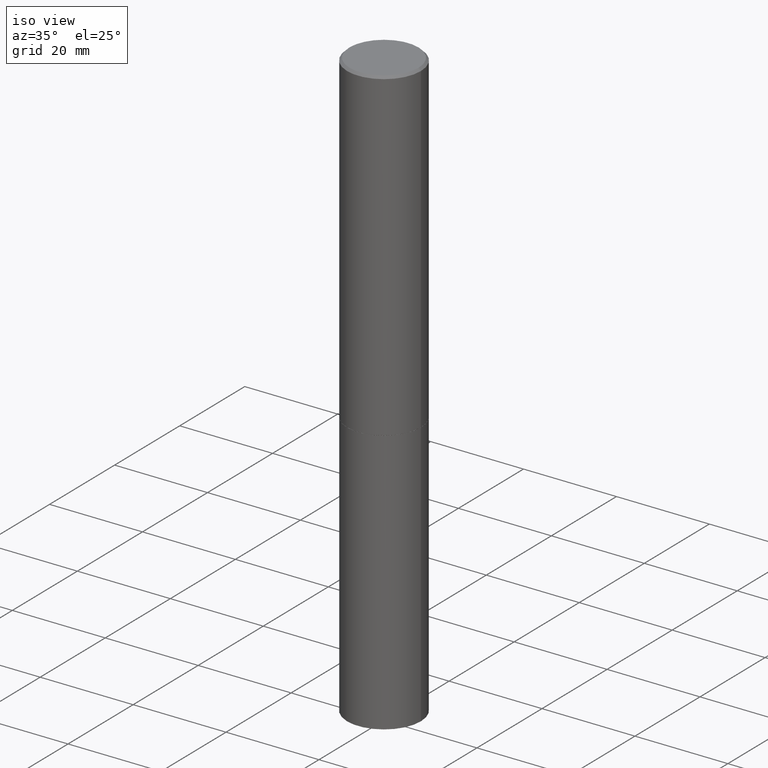
[diagram: clean part render]
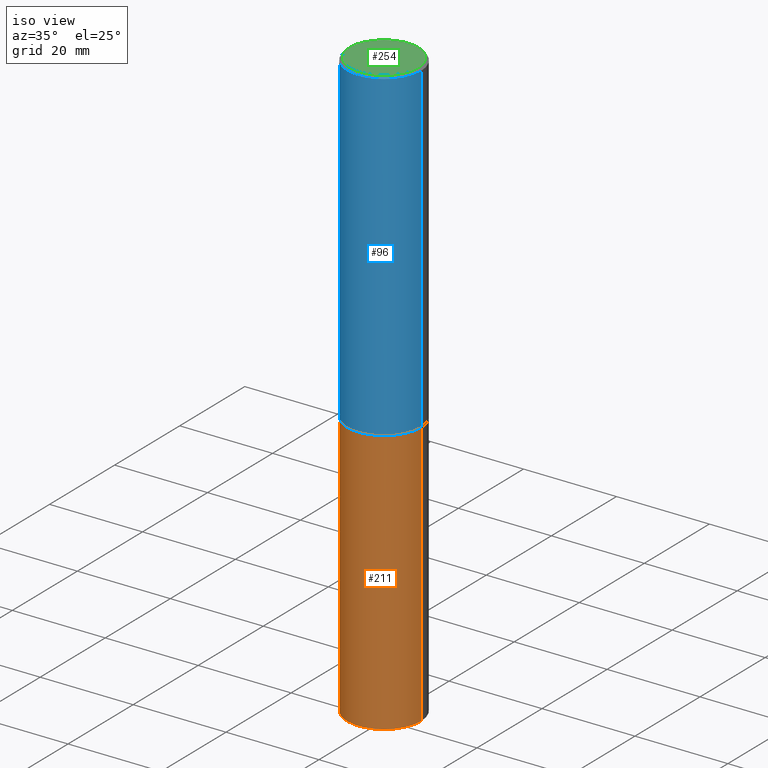
[diagram: same view with three faces highlighted in distinct colors, each labeled with its STEP entity id]
A machine part, iso view with three faces highlighted in distinct colors.
Their STEP definitions:

[orange] entity #211 — the highlighted cylindrical surface (partial cylindrical patch) has radius 7.9375 mm, axis along (-0, 0, 1).
#6 = DIRECTION ( 'NONE',  ( -2.445468806185136877E-29, 3.491481338843145188E-15, 1.000000000000000000 ) ) ;
#10 = DIRECTION ( 'NONE',  ( 1.000000000000000000, -6.982962677686269077E-15, 0.000000000000000000 ) ) ;
#21 = CARTESIAN_POINT ( 'NONE',  ( -0.3125000000000000000, 2.220446049250313081E-15, -1.537167215704658232E-29 ) ) ;
#35 = CARTESIAN_POINT ( 'NONE',  ( 0.3125000000000000000, -2.182175836776958347E-15, 1.523805242436230075E-29 ) ) ;
#48 = CARTESIAN_POINT ( 'NONE',  ( 0.3124999999999998890, -1.960131231851933350E-14, -5.000000000000000000 ) ) ;
#62 = EDGE_CURVE ( 'NONE', #169, #93, #291, .T. ) ;
#64 = VERTEX_POINT ( 'NONE', #384 ) ;
#93 = VERTEX_POINT ( 'NONE', #299 ) ;
#104 = ORIENTED_EDGE ( 'NONE', *, *, #62, .F. ) ;
#108 = FACE_OUTER_BOUND ( 'NONE', #255, .T. ) ;
#115 = ORIENTED_EDGE ( 'NONE', *, *, #390, .T. ) ;
#117 = AXIS2_PLACEMENT_3D ( 'NONE', #274, #288, #10 ) ;
#153 = DIRECTION ( 'NONE',  ( 1.000000000000000000, -6.982962677686266711E-15, 4.876176775795936353E-29 ) ) ;
#167 = LINE ( 'NONE', #35, #303 ) ;
#169 = VERTEX_POINT ( 'NONE', #221 ) ;
#170 = AXIS2_PLACEMENT_3D ( 'NONE', #374, #280, #352 ) ;
#198 = EDGE_CURVE ( 'NONE', #373, #64, #167, .T. ) ;
#209 = DIRECTION ( 'NONE',  ( -2.445468806185136597E-29, 3.491481338843145583E-15, 1.000000000000000000 ) ) ;
#211 = ADVANCED_FACE ( 'NONE', ( #108 ), #309, .T. ) ;
#221 = CARTESIAN_POINT ( 'NONE',  ( -0.3124999999999998890, -1.527523085743876996E-14, -5.000000000000000000 ) ) ;
#243 = CARTESIAN_POINT ( 'NONE',  ( 0.000000000000000000, 0.000000000000000000, 0.000000000000000000 ) ) ;
#251 = AXIS2_PLACEMENT_3D ( 'NONE', #243, #209, #153 ) ;
#255 = EDGE_LOOP ( 'NONE', ( #104, #115, #301, #359 ) ) ;
#274 = CARTESIAN_POINT ( 'NONE',  ( 6.725039217009124520E-29, -9.601573681818649859E-15, -2.750000000000000000 ) ) ;
#280 = DIRECTION ( 'NONE',  ( -2.445468806185136597E-29, 3.491481338843145583E-15, 1.000000000000000000 ) ) ;
#288 = DIRECTION ( 'NONE',  ( -2.445468806185136597E-29, 3.491481338843145583E-15, 1.000000000000000000 ) ) ;
#291 = LINE ( 'NONE', #21, #369 ) ;
#299 = CARTESIAN_POINT ( 'NONE',  ( -0.3125000000000000000, -1.130904413876687600E-14, -2.750000000000000000 ) ) ;
#301 = ORIENTED_EDGE ( 'NONE', *, *, #198, .T. ) ;
#303 = VECTOR ( 'NONE', #6, 39.37007874015748143 ) ;
#309 = CYLINDRICAL_SURFACE ( 'NONE', #251, 0.3125000000000000000 ) ;
#321 = DIRECTION ( 'NONE',  ( -2.445468806185136877E-29, 3.491481338843145188E-15, 1.000000000000000000 ) ) ;
#331 = CIRCLE ( 'NONE', #170, 0.3125000000000000000 ) ;
#333 = CIRCLE ( 'NONE', #117, 0.3125000000000000000 ) ;
#352 = DIRECTION ( 'NONE',  ( 1.000000000000000000, -6.982962677686269077E-15, 0.000000000000000000 ) ) ;
#359 = ORIENTED_EDGE ( 'NONE', *, *, #387, .F. ) ;
#369 = VECTOR ( 'NONE', #321, 39.37007874015748143 ) ;
#373 = VERTEX_POINT ( 'NONE', #48 ) ;
#374 = CARTESIAN_POINT ( 'NONE',  ( 1.222734403092568523E-28, -1.745740669421572989E-14, -5.000000000000000000 ) ) ;
#384 = CARTESIAN_POINT ( 'NONE',  ( 0.3125000000000000000, -1.178374951859560978E-14, -2.750000000000000000 ) ) ;
#387 = EDGE_CURVE ( 'NONE', #93, #64, #333, .T. ) ;
#390 = EDGE_CURVE ( 'NONE', #169, #373, #331, .T. ) ;

[blue] entity #96 — the highlighted cylindrical surface (partial cylindrical patch) has radius 7.9375 mm, axis along (-0, 0, 1).
#1 = ORIENTED_EDGE ( 'NONE', *, *, #246, .T. ) ;
#38 = DIRECTION ( 'NONE',  ( -2.445468806185136877E-29, 3.491481338843145188E-15, 1.000000000000000000 ) ) ;
#39 = LINE ( 'NONE', #278, #388 ) ;
#50 = CIRCLE ( 'NONE', #207, 0.3124999999999996669 ) ;
#52 = EDGE_CURVE ( 'NONE', #330, #356, #39, .T. ) ;
#54 = DIRECTION ( 'NONE',  ( -2.445468806185136597E-29, 3.491481338843145583E-15, 1.000000000000000000 ) ) ;
#56 = CARTESIAN_POINT ( 'NONE',  ( 0.3124999999999996669, -2.213735251080464545E-15, -0.02000000000000005593 ) ) ;
#65 = EDGE_CURVE ( 'NONE', #356, #190, #50, .T. ) ;
#71 = CARTESIAN_POINT ( 'NONE',  ( 0.3125000000000000000, -1.178025803725676678E-14, -2.749000000000000110 ) ) ;
#92 = CARTESIAN_POINT ( 'NONE',  ( -0.3124999999999996669, 2.112346210000092682E-15, -0.02000000000000005593 ) ) ;
#96 = ADVANCED_FACE ( 'NONE', ( #219 ), #349, .T. ) ;
#102 = EDGE_CURVE ( 'NONE', #328, #190, #258, .T. ) ;
#105 = VECTOR ( 'NONE', #239, 39.37007874015748143 ) ;
#130 = DIRECTION ( 'NONE',  ( 1.000000000000000000, -6.982962677686269077E-15, 0.000000000000000000 ) ) ;
#132 = CARTESIAN_POINT ( 'NONE',  ( 0.3124999999999998890, -2.182175836776957558E-15, 1.523805242436229235E-29 ) ) ;
#147 = DIRECTION ( 'NONE',  ( 1.000000000000000000, -6.982962677686266711E-15, 0.000000000000000000 ) ) ;
#152 = CARTESIAN_POINT ( 'NONE',  ( 4.890937612370287172E-31, -6.982962677686310098E-17, -0.02000000000000005593 ) ) ;
#154 = CARTESIAN_POINT ( 'NONE',  ( 6.722593748202941159E-29, -9.598082200479808430E-15, -2.749000000000000110 ) ) ;
#183 = DIRECTION ( 'NONE',  ( 1.000000000000000000, -6.982962677686266711E-15, 4.876176775795935232E-29 ) ) ;
#190 = VERTEX_POINT ( 'NONE', #56 ) ;
#202 = AXIS2_PLACEMENT_3D ( 'NONE', #381, #54, #183 ) ;
#207 = AXIS2_PLACEMENT_3D ( 'NONE', #152, #261, #147 ) ;
#219 = FACE_OUTER_BOUND ( 'NONE', #229, .T. ) ;
#229 = EDGE_LOOP ( 'NONE', ( #238, #1, #241, #322 ) ) ;
#238 = ORIENTED_EDGE ( 'NONE', *, *, #52, .F. ) ;
#239 = DIRECTION ( 'NONE',  ( -2.445468806185136877E-29, 3.491481338843145188E-15, 1.000000000000000000 ) ) ;
#241 = ORIENTED_EDGE ( 'NONE', *, *, #102, .T. ) ;
#246 = EDGE_CURVE ( 'NONE', #330, #328, #336, .T. ) ;
#249 = CARTESIAN_POINT ( 'NONE',  ( -0.3125000000000000000, -2.613509864378020417E-15, -2.749000000000000110 ) ) ;
#258 = LINE ( 'NONE', #132, #105 ) ;
#261 = DIRECTION ( 'NONE',  ( -2.445468806185136597E-29, 3.491481338843145583E-15, 1.000000000000000000 ) ) ;
#278 = CARTESIAN_POINT ( 'NONE',  ( -0.3124999999999998890, 2.220446049250312292E-15, -1.537167215704657391E-29 ) ) ;
#322 = ORIENTED_EDGE ( 'NONE', *, *, #65, .F. ) ;
#323 = AXIS2_PLACEMENT_3D ( 'NONE', #154, #358, #130 ) ;
#328 = VERTEX_POINT ( 'NONE', #71 ) ;
#330 = VERTEX_POINT ( 'NONE', #249 ) ;
#336 = CIRCLE ( 'NONE', #323, 0.3125000000000000000 ) ;
#349 = CYLINDRICAL_SURFACE ( 'NONE', #202, 0.3124999999999998890 ) ;
#356 = VERTEX_POINT ( 'NONE', #92 ) ;
#358 = DIRECTION ( 'NONE',  ( -2.445468806185136597E-29, 3.491481338843145583E-15, 1.000000000000000000 ) ) ;
#381 = CARTESIAN_POINT ( 'NONE',  ( 0.000000000000000000, 0.000000000000000000, 0.000000000000000000 ) ) ;
#388 = VECTOR ( 'NONE', #38, 39.37007874015748143 ) ;

[green] entity #254 — the highlighted planar face has unit normal (0, -0, -1).
#7 = DIRECTION ( 'NONE',  ( -2.445468806185136597E-29, 3.491481338843145583E-15, 1.000000000000000000 ) ) ;
#15 = CIRCLE ( 'NONE', #196, 0.2924999999999996492 ) ;
#22 = VERTEX_POINT ( 'NONE', #78 ) ;
#37 = EDGE_CURVE ( 'NONE', #81, #22, #15, .T. ) ;
#67 = AXIS2_PLACEMENT_3D ( 'NONE', #302, #163, #366 ) ;
#78 = CARTESIAN_POINT ( 'NONE',  ( -0.2924999999999996492, 2.077431396611661822E-15, 4.268512490086005323E-18 ) ) ;
#81 = VERTEX_POINT ( 'NONE', #187 ) ;
#107 = DIRECTION ( 'NONE',  ( -2.445468806185136597E-29, 3.491481338843145583E-15, 1.000000000000000000 ) ) ;
#136 = DIRECTION ( 'NONE',  ( 1.000000000000000000, -6.982962677686266711E-15, 4.876067333457695642E-29 ) ) ;
#155 = ORIENTED_EDGE ( 'NONE', *, *, #273, .T. ) ;
#163 = DIRECTION ( 'NONE',  ( 2.438088387897960049E-29, -3.491481338843145188E-15, -1.000000000000000000 ) ) ;
#187 = CARTESIAN_POINT ( 'NONE',  ( 0.2924999999999996492, -2.110215457714317564E-15, 4.268512490114932791E-18 ) ) ;
#196 = AXIS2_PLACEMENT_3D ( 'NONE', #287, #7, #136 ) ;
#216 = CIRCLE ( 'NONE', #357, 0.2924999999999996492 ) ;
#234 = FACE_OUTER_BOUND ( 'NONE', #318, .T. ) ;
#237 = DIRECTION ( 'NONE',  ( 1.000000000000000000, -6.982962677686266711E-15, 4.876067333457695642E-29 ) ) ;
#254 = ADVANCED_FACE ( 'NONE', ( #234 ), #361, .F. ) ;
#273 = EDGE_CURVE ( 'NONE', #22, #81, #216, .T. ) ;
#287 = CARTESIAN_POINT ( 'NONE',  ( -1.043851414335219820E-46, 1.490343170380447200E-32, 4.268512490100411279E-18 ) ) ;
#302 = CARTESIAN_POINT ( 'NONE',  ( 2.042516583223230173E-15, 0.2924999999999996492, -1.019124035366568620E-15 ) ) ;
#318 = EDGE_LOOP ( 'NONE', ( #155, #341 ) ) ;
#337 = CARTESIAN_POINT ( 'NONE',  ( -1.043851414335219820E-46, 1.490343170380447200E-32, 4.268512490100411279E-18 ) ) ;
#341 = ORIENTED_EDGE ( 'NONE', *, *, #37, .T. ) ;
#357 = AXIS2_PLACEMENT_3D ( 'NONE', #337, #107, #237 ) ;
#361 = PLANE ( 'NONE',  #67 ) ;
#366 = DIRECTION ( 'NONE',  ( -1.000000000000000000, 6.982962677686265922E-15, -4.876176775795935793E-29 ) ) ;